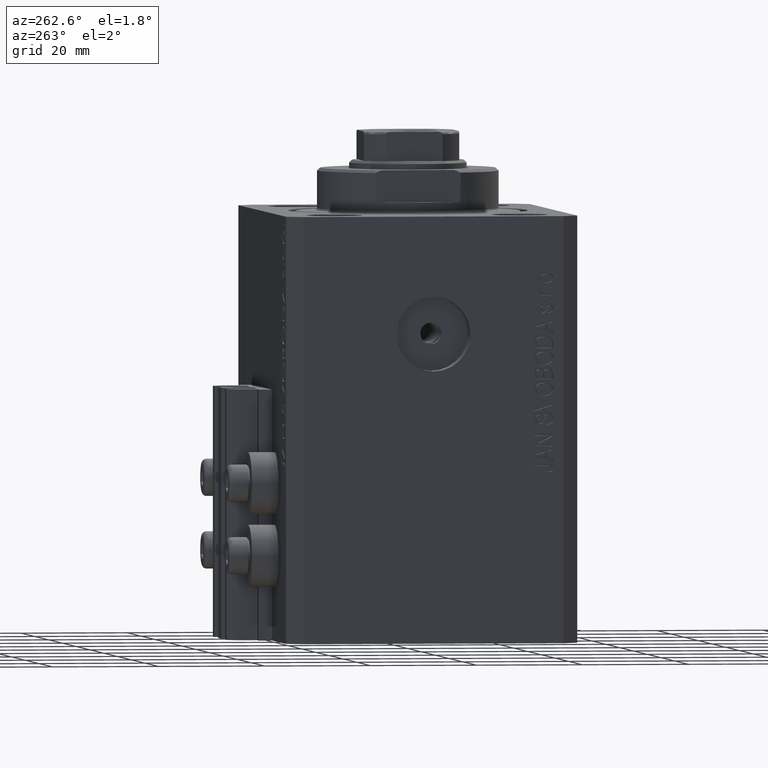
[diagram: clean part render]
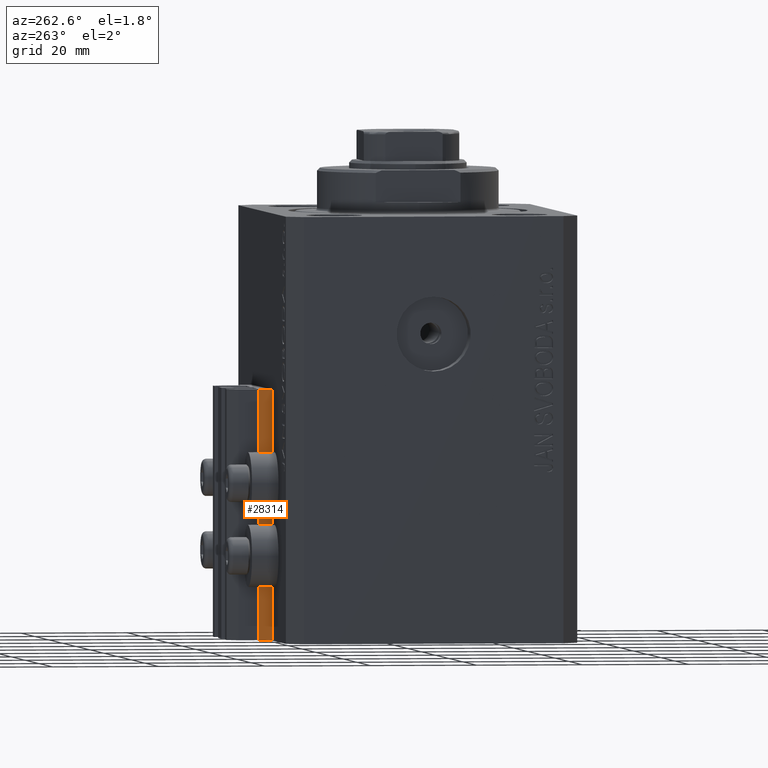
[diagram: same view with one face highlighted and labeled with its STEP entity id]
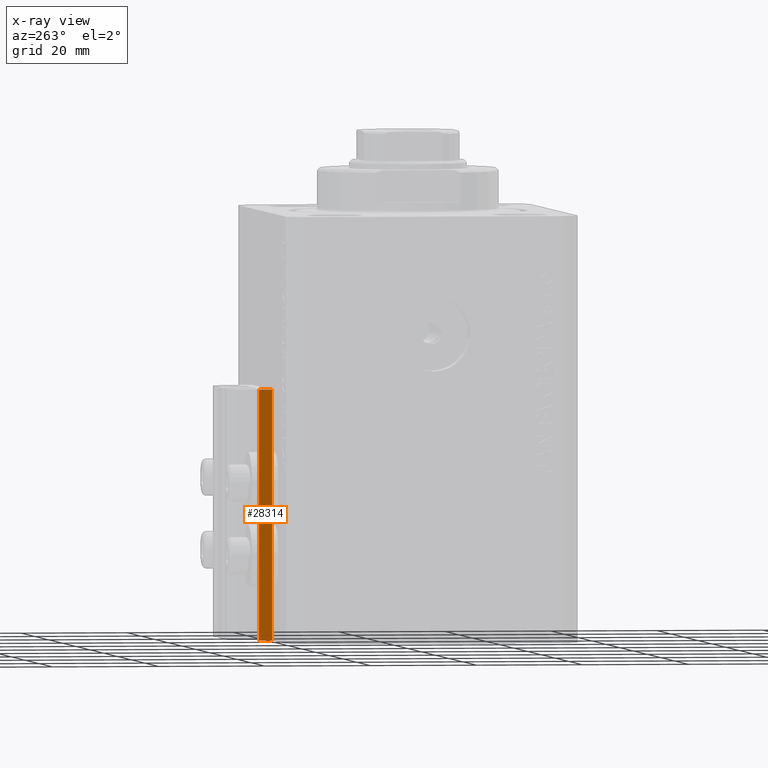
[diagram: x-ray of the same camera — body ghosted, the highlighted face saturated]
A machine part, auxiliary view. The second image highlights one B-rep face of the part: STEP entity #28314.
The next image is the same camera in x-ray: the body ghosted, the highlighted face saturated — about 0% of this face is hidden behind the body in this view.
In plain terms, the highlighted planar face has unit normal (-1, 0, 0).
Its self-contained STEP definition (entity closure, byte-faithful):
#1435 = DIRECTION ( 'NONE',  ( 0.000000000000000000, 0.000000000000000000, 1.000000000000000000 ) ) ;
#2363 = VERTEX_POINT ( 'NONE', #29909 ) ;
#5927 = ORIENTED_EDGE ( 'NONE', *, *, #22477, .T. ) ;
#7151 = FACE_OUTER_BOUND ( 'NONE', #8705, .T. ) ;
#8705 = EDGE_LOOP ( 'NONE', ( #13229, #34820, #5927, #12545 ) ) ;
#9550 = CARTESIAN_POINT ( 'NONE',  ( -14.50000000000000000, 29.99999999999999289, -33.00000000000000000 ) ) ;
#10117 = LINE ( 'NONE', #24769, #17628 ) ;
#10412 = DIRECTION ( 'NONE',  ( 0.000000000000000000, -1.000000000000000000, 0.000000000000000000 ) ) ;
#10865 = EDGE_CURVE ( 'NONE', #31152, #37353, #10117, .T. ) ;
#11249 = DIRECTION ( 'NONE',  ( 0.000000000000000000, 0.000000000000000000, 1.000000000000000000 ) ) ;
#12545 = ORIENTED_EDGE ( 'NONE', *, *, #18908, .T. ) ;
#12580 = CARTESIAN_POINT ( 'NONE',  ( -14.50000000000000000, 29.99999999999999289, -80.00000000000000000 ) ) ;
#12855 = AXIS2_PLACEMENT_3D ( 'NONE', #21804, #33087, #11249 ) ;
#13229 = ORIENTED_EDGE ( 'NONE', *, *, #43918, .F. ) ;
#13872 = VERTEX_POINT ( 'NONE', #24396 ) ;
#17628 = VECTOR ( 'NONE', #35799, 1000.000000000000000 ) ;
#18455 = PLANE ( 'NONE',  #12855 ) ;
#18908 = EDGE_CURVE ( 'NONE', #2363, #13872, #38164, .T. ) ;
#21804 = CARTESIAN_POINT ( 'NONE',  ( -14.50000000000000000, 29.99999999999999289, -80.00000000000000000 ) ) ;
#22477 = EDGE_CURVE ( 'NONE', #31152, #2363, #28653, .T. ) ;
#24396 = CARTESIAN_POINT ( 'NONE',  ( -14.50000000000000000, 27.50000000000000355, -33.00000000000000000 ) ) ;
#24769 = CARTESIAN_POINT ( 'NONE',  ( -14.50000000000000000, 29.99999999999999289, -80.00000000000000000 ) ) ;
#28314 = ADVANCED_FACE ( 'NONE', ( #7151 ), #18455, .T. ) ;
#28653 = LINE ( 'NONE', #43270, #44882 ) ;
#28813 = CARTESIAN_POINT ( 'NONE',  ( -14.50000000000000000, 29.99999999999999289, -33.00000000000000000 ) ) ;
#29909 = CARTESIAN_POINT ( 'NONE',  ( -14.50000000000000000, 27.50000000000000355, -80.00000000000000000 ) ) ;
#31152 = VERTEX_POINT ( 'NONE', #12580 ) ;
#32414 = DIRECTION ( 'NONE',  ( 0.000000000000000000, -1.000000000000000000, 0.000000000000000000 ) ) ;
#33087 = DIRECTION ( 'NONE',  ( -1.000000000000000000, 0.000000000000000000, 0.000000000000000000 ) ) ;
#34820 = ORIENTED_EDGE ( 'NONE', *, *, #10865, .F. ) ;
#35704 = VECTOR ( 'NONE', #1435, 1000.000000000000000 ) ;
#35799 = DIRECTION ( 'NONE',  ( 0.000000000000000000, 0.000000000000000000, 1.000000000000000000 ) ) ;
#37353 = VERTEX_POINT ( 'NONE', #9550 ) ;
#38164 = LINE ( 'NONE', #41054, #35704 ) ;
#39272 = VECTOR ( 'NONE', #32414, 1000.000000000000000 ) ;
#41054 = CARTESIAN_POINT ( 'NONE',  ( -14.50000000000000000, 27.50000000000000355, -80.00000000000000000 ) ) ;
#43202 = LINE ( 'NONE', #28813, #39272 ) ;
#43270 = CARTESIAN_POINT ( 'NONE',  ( -14.50000000000000000, 29.99999999999999289, -80.00000000000000000 ) ) ;
#43918 = EDGE_CURVE ( 'NONE', #37353, #13872, #43202, .T. ) ;
#44882 = VECTOR ( 'NONE', #10412, 1000.000000000000000 ) ;